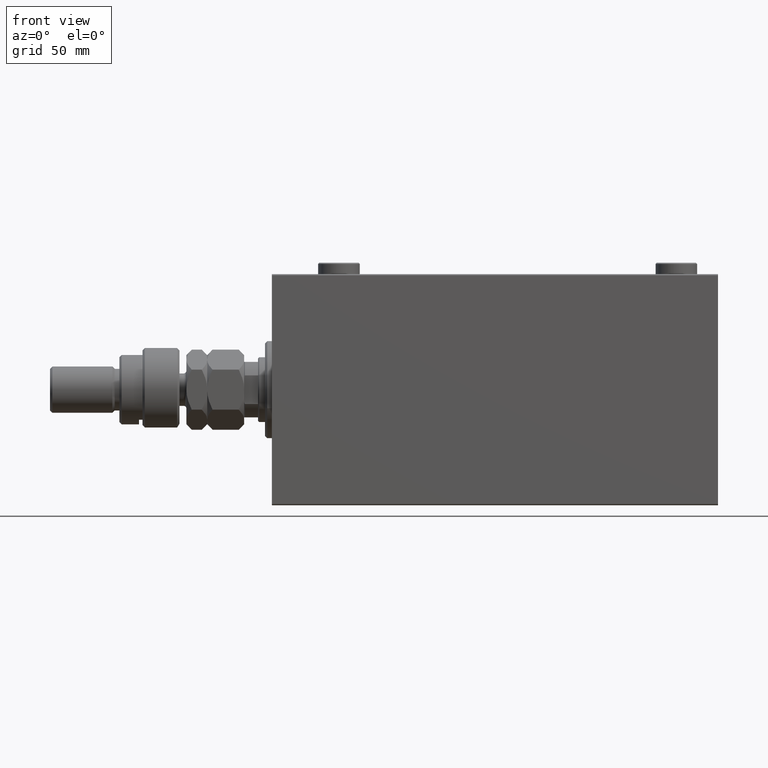
[diagram: clean part render]
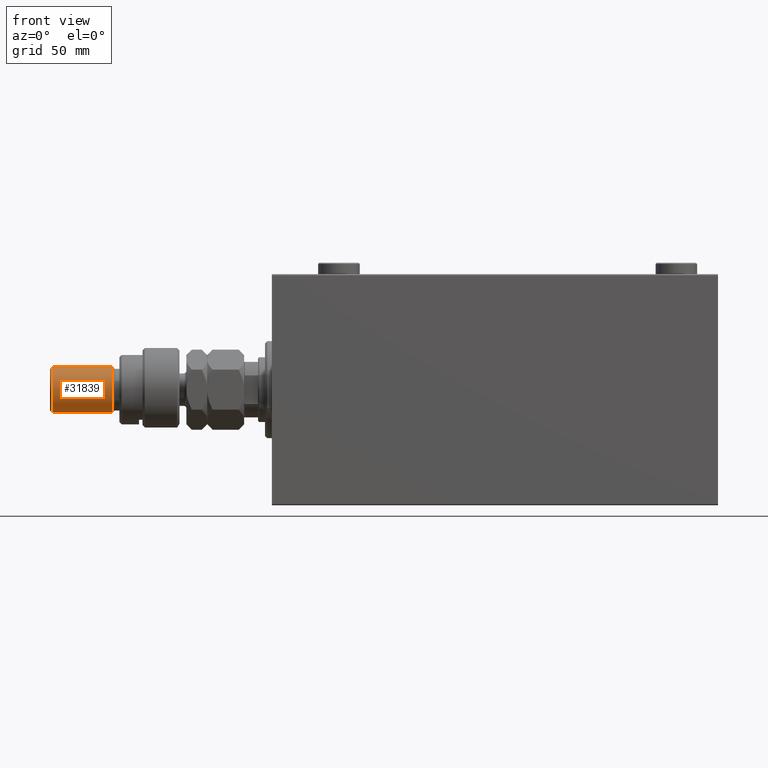
[diagram: same view with one face highlighted and labeled with its STEP entity id]
A machine part, front view. The second image highlights one B-rep face of the part: STEP entity #31839.
In plain terms, the highlighted cylindrical surface (edge-blend (fillet) strip) has radius 10 mm, axis along (1, -0, -0).
Its self-contained STEP definition (entity closure, byte-faithful):
#881 = CARTESIAN_POINT ( 'NONE',  ( 0.000000000000000000, 0.000000000000000000, 54.99999999999998579 ) ) ;
#2299 = CIRCLE ( 'NONE', #31828, 10.00000000000000000 ) ;
#2511 = DIRECTION ( 'NONE',  ( -1.000000000000000000, 0.000000000000000000, 0.000000000000000000 ) ) ;
#5992 = CIRCLE ( 'NONE', #9123, 10.00000000000000000 ) ;
#6642 = CYLINDRICAL_SURFACE ( 'NONE', #46222, 10.00000000000000000 ) ;
#7952 = DIRECTION ( 'NONE',  ( 0.000000000000000000, 0.000000000000000000, -1.000000000000000000 ) ) ;
#8335 = ORIENTED_EDGE ( 'NONE', *, *, #15354, .T. ) ;
#9123 = AXIS2_PLACEMENT_3D ( 'NONE', #40621, #36727, #11167 ) ;
#11167 = DIRECTION ( 'NONE',  ( 1.000000000000000000, 0.000000000000000000, 0.000000000000000000 ) ) ;
#11658 = VECTOR ( 'NONE', #34740, 1000.000000000000000 ) ;
#15354 = EDGE_CURVE ( 'NONE', #19728, #36486, #30846, .T. ) ;
#15628 = EDGE_CURVE ( 'NONE', #34439, #19728, #2299, .T. ) ;
#16228 = CARTESIAN_POINT ( 'NONE',  ( -10.00000000000000000, 0.000000000000000000, 29.00000000000000711 ) ) ;
#18607 = EDGE_CURVE ( 'NONE', #34439, #31269, #43812, .T. ) ;
#19728 = VERTEX_POINT ( 'NONE', #25976 ) ;
#21013 = FACE_OUTER_BOUND ( 'NONE', #32083, .T. ) ;
#25976 = CARTESIAN_POINT ( 'NONE',  ( -10.00000000000000000, 0.000000000000000000, 54.99999999999998579 ) ) ;
#26557 = ORIENTED_EDGE ( 'NONE', *, *, #18607, .F. ) ;
#26679 = DIRECTION ( 'NONE',  ( 1.000000000000000000, 0.000000000000000000, 0.000000000000000000 ) ) ;
#29272 = DIRECTION ( 'NONE',  ( -0.000000000000000000, -0.000000000000000000, -1.000000000000000000 ) ) ;
#30846 = LINE ( 'NONE', #45722, #11658 ) ;
#31269 = VERTEX_POINT ( 'NONE', #32610 ) ;
#31828 = AXIS2_PLACEMENT_3D ( 'NONE', #881, #7952, #26679 ) ;
#31839 = ADVANCED_FACE ( 'NONE', ( #21013 ), #6642, .T. ) ;
#32083 = EDGE_LOOP ( 'NONE', ( #26557, #46603, #8335, #45612 ) ) ;
#32610 = CARTESIAN_POINT ( 'NONE',  ( 10.00000000000000000, 1.224646799147353256E-15, 29.00000000000000711 ) ) ;
#34439 = VERTEX_POINT ( 'NONE', #44613 ) ;
#34740 = DIRECTION ( 'NONE',  ( -0.000000000000000000, -0.000000000000000000, -1.000000000000000000 ) ) ;
#36292 = EDGE_CURVE ( 'NONE', #36486, #31269, #5992, .T. ) ;
#36340 = CARTESIAN_POINT ( 'NONE',  ( 0.000000000000000000, 0.000000000000000000, 56.00000000000000711 ) ) ;
#36486 = VERTEX_POINT ( 'NONE', #16228 ) ;
#36727 = DIRECTION ( 'NONE',  ( -0.000000000000000000, -0.000000000000000000, 1.000000000000000000 ) ) ;
#37933 = DIRECTION ( 'NONE',  ( -0.000000000000000000, -0.000000000000000000, -1.000000000000000000 ) ) ;
#40621 = CARTESIAN_POINT ( 'NONE',  ( 0.000000000000000000, 0.000000000000000000, 29.00000000000000711 ) ) ;
#42016 = VECTOR ( 'NONE', #37933, 1000.000000000000000 ) ;
#43812 = LINE ( 'NONE', #47959, #42016 ) ;
#44613 = CARTESIAN_POINT ( 'NONE',  ( 10.00000000000000000, 1.224646799147353256E-15, 54.99999999999998579 ) ) ;
#45612 = ORIENTED_EDGE ( 'NONE', *, *, #36292, .T. ) ;
#45722 = CARTESIAN_POINT ( 'NONE',  ( -10.00000000000000000, 0.000000000000000000, 56.00000000000000711 ) ) ;
#46222 = AXIS2_PLACEMENT_3D ( 'NONE', #36340, #29272, #2511 ) ;
#46603 = ORIENTED_EDGE ( 'NONE', *, *, #15628, .T. ) ;
#47959 = CARTESIAN_POINT ( 'NONE',  ( 10.00000000000000000, 1.224646799147353256E-15, 56.00000000000000711 ) ) ;